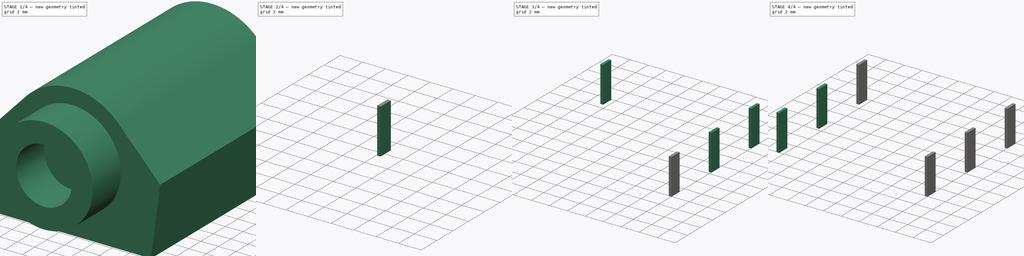
[diagram: build sequence overview — one tinted view per stage of 4, left to right]
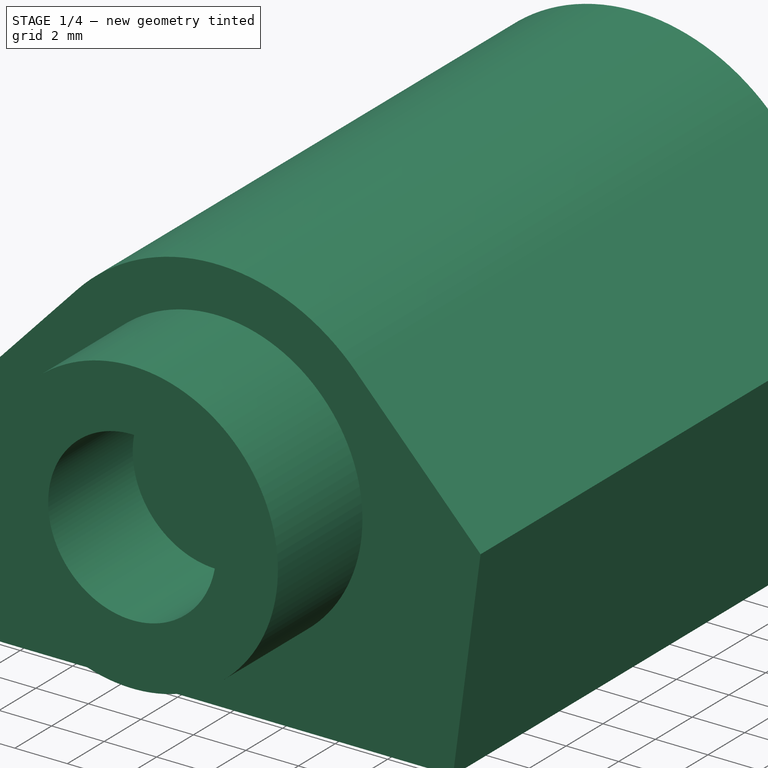
[diagram: stage 1 of 4 — iso view after this stage's code; geometry added in this stage tinted green]
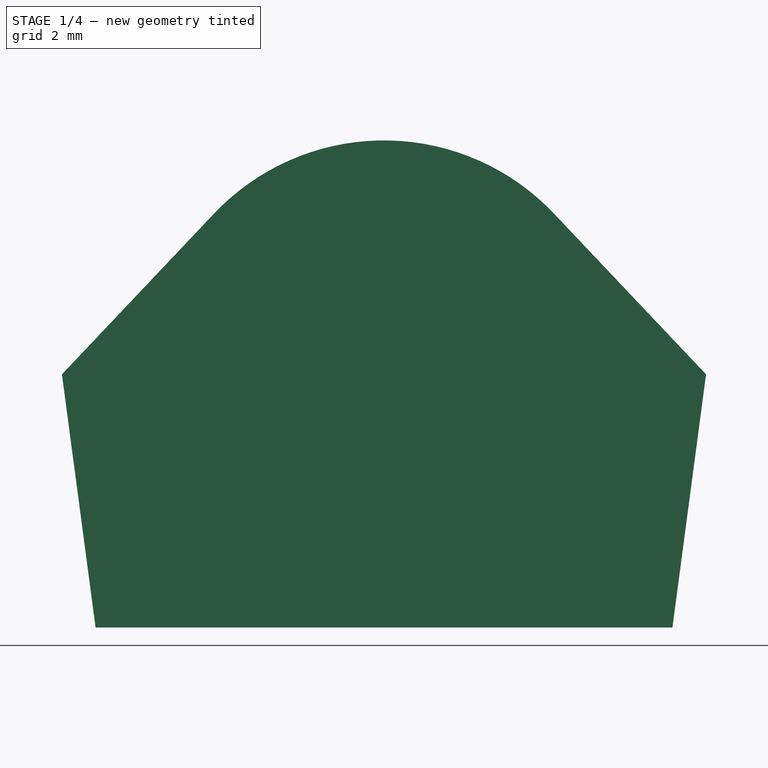
[diagram: stage 1 of 4 — front view after this stage's code; geometry added in this stage tinted green]
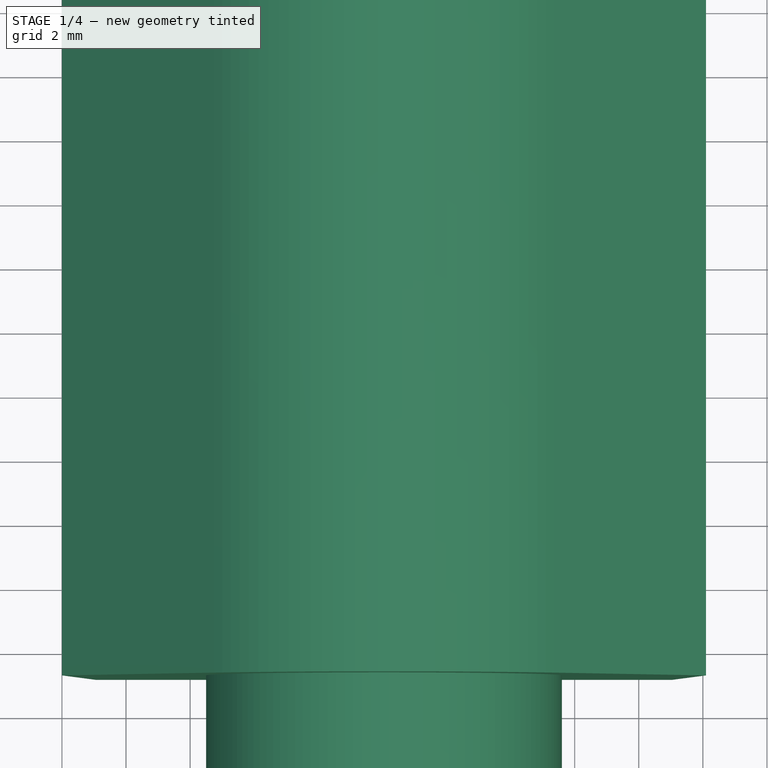
[diagram: stage 1 of 4 — top view after this stage's code; geometry added in this stage tinted green]
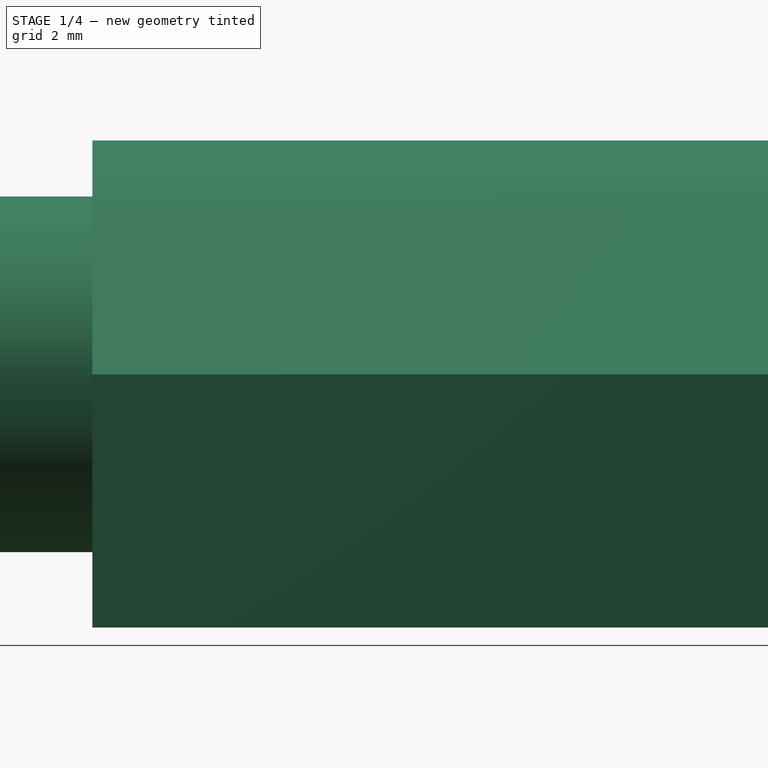
[diagram: stage 1 of 4 — right view after this stage's code; geometry added in this stage tinted green]
FCSTD DOCUMENT  (FreeCAD 0.18.4R)
Label: CL13345
License: All rights reserved
LicenseURL: http://en.wikipedia.org/wiki/All_rights_reserved
objects: Sketcher::SketchObject×10, PartDesign::Pad×9, PartDesign::Body×7, PartDesign::ShapeBinder×6, PartDesign::Pocket×1
note: 43 computed .brp shape members not serialized (recipe doc carries the construction recipe); baked Part::Feature solids carry a one-line shape summary decoded from their .brp

FEATURE [Sketcher::SketchObject] Sketch  label="Sk_JackBody"
  MapMode = 5
  Placement = pos=(0,0,0) rot=(1,0,0;1.5708rad)
  Support = -> [XZ_Plane]
  sketch-geometry (8):
    g0: LineSegment StartX=0 StartY=7.9 StartZ=0 EndX=1.05 EndY=0 EndZ=0
    g1: LineSegment StartX=1.05 StartY=0 StartZ=0 EndX=19.05 EndY=0 EndZ=0
    g2: LineSegment StartX=19.05 StartY=0 StartZ=0 EndX=20.1 EndY=7.9 EndZ=0
    g3: LineSegment StartX=20.1 StartY=7.9 StartZ=0 EndX=15.3525 EndY=12.9173 EndZ=0
    g4: ArcOfCircle CenterX=10.05 CenterY=7.9 CenterZ=0 NormalX=0 NormalY=0 NormalZ=1 AngleXU=0 Radius=7.3 StartAngle=0.757773 EndAngle=2.38382
    g5: LineSegment StartX=4.74751 StartY=12.9173 StartZ=0 EndX=0 EndY=7.9 EndZ=0
    g6: LineSegment [constr] StartX=10.05 StartY=0 StartZ=0 EndX=10.05 EndY=15.2 EndZ=0
    g7: LineSegment [constr] StartX=0 StartY=0 StartZ=0 EndX=0 EndY=7.9 EndZ=0
  constraints (22):
    c: PointOnObject(g0,g-1)
    c: Coincident(g0,g1)
    c: Horizontal(g1)
    c: Coincident(g1,g2)
    c: Coincident(g2,g3)
    c: Tangent(g3,g4) = -1.5708
    c: Coincident(g4,g5)
    c: Coincident(g5,g0)
    c: PointOnObject(g6,g1)
    c: PointOnObject(g6,g4)
    c: Equal(g0,g2)
    c: Symmetric(g0,g1,g6)
    c: Symmetric(g0,g2,g6)
    c: Symmetric(g4,g3,g6)
    c: DistanceY(g6,g6) = 15.2
    c: DistanceX(g0,g2) = 20.1
    c: Radius(g4) = 7.3
    c: DistanceY(g1,g2) = 7.9
    c: DistanceX(g1,g1) = 18
    c: Coincident(g7,g-1)
    c: Coincident(g7,g0)
    c: Vertical(g7)
FEATURE [PartDesign::Pad] Pad  label="JackBody"
  Length = 22.8
  Length2 = 100
  Placement = pos=(0,0,0) rot=(1,0,0;1.5708rad)
  Profile = -> Sketch
  Refine = true
  Type = 0
FEATURE [Sketcher::SketchObject] Sketch001  label="Sk_InsertFlange"
  ExternalGeometry = -> [Pad]
  MapMode = 5
  Placement = pos=(0,-22.8,1.01e-14) rot=(1,0,0;1.5708rad)
  Support = -> [Pad]
  sketch-geometry (3):
    g0: LineSegment [constr] StartX=10.05 StartY=0 StartZ=0 EndX=10.05 EndY=7.9 EndZ=0
    g1: Circle CenterX=10.05 CenterY=7.9 CenterZ=0 NormalX=0 NormalY=0 NormalZ=1 AngleXU=0 Radius=5.55
    g2: Circle CenterX=10.05 CenterY=7.9 CenterZ=0 NormalX=0 NormalY=0 NormalZ=1 AngleXU=0 Radius=3.2
  constraints (7):
    c: Vertical(g0)
    c: Symmetric(g-3,g-3,g0)
    c: DistanceY(g0,g0) = 7.9
    c: Coincident(g1,g0)
    c: Diameter(g1) = 11.1
    c: Coincident(g2,g1)
    c: Diameter(g2) = 6.4
FEATURE [PartDesign::Pad] Pad001  label="InsertFlange"
  BaseFeature = -> Pad
  Length = 4.6
  Length2 = 100
  Placement = pos=(0,0,0) rot=(1,0,0;1.5708rad)
  Profile = -> Sketch001
  Refine = true
  Type = 0
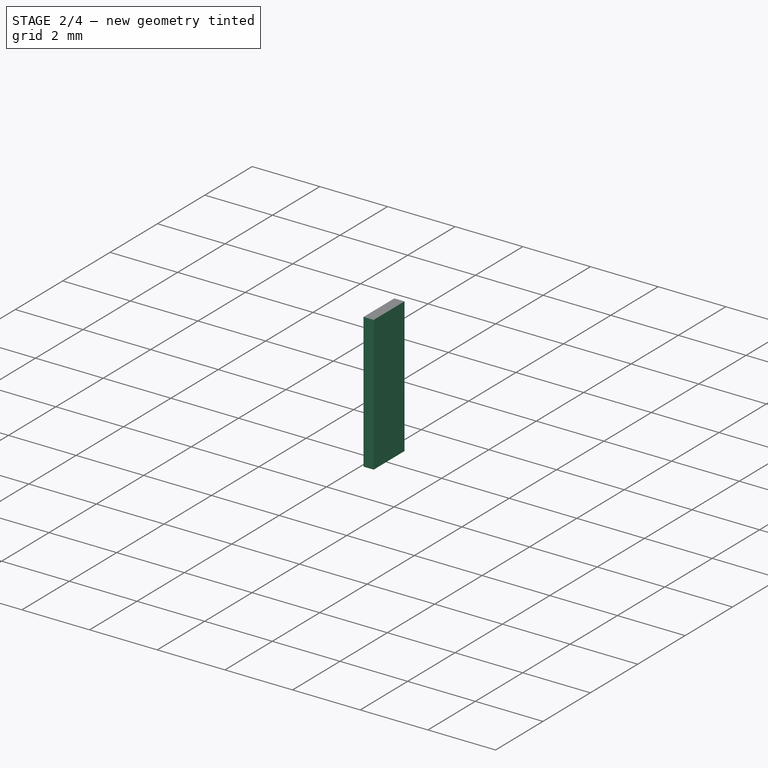
[diagram: stage 2 of 4 — iso view after this stage's code; geometry added in this stage tinted green]
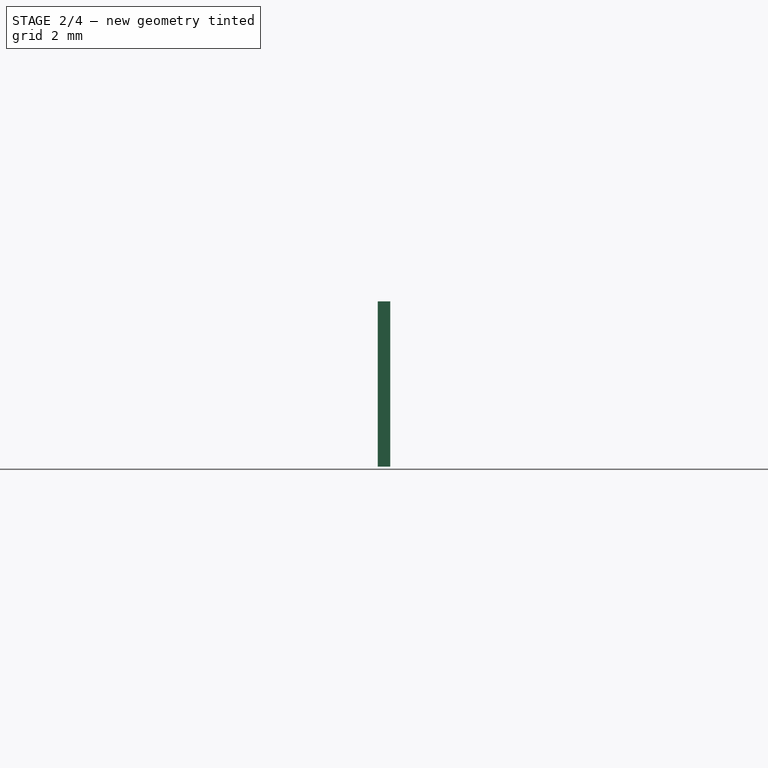
[diagram: stage 2 of 4 — front view after this stage's code; geometry added in this stage tinted green]
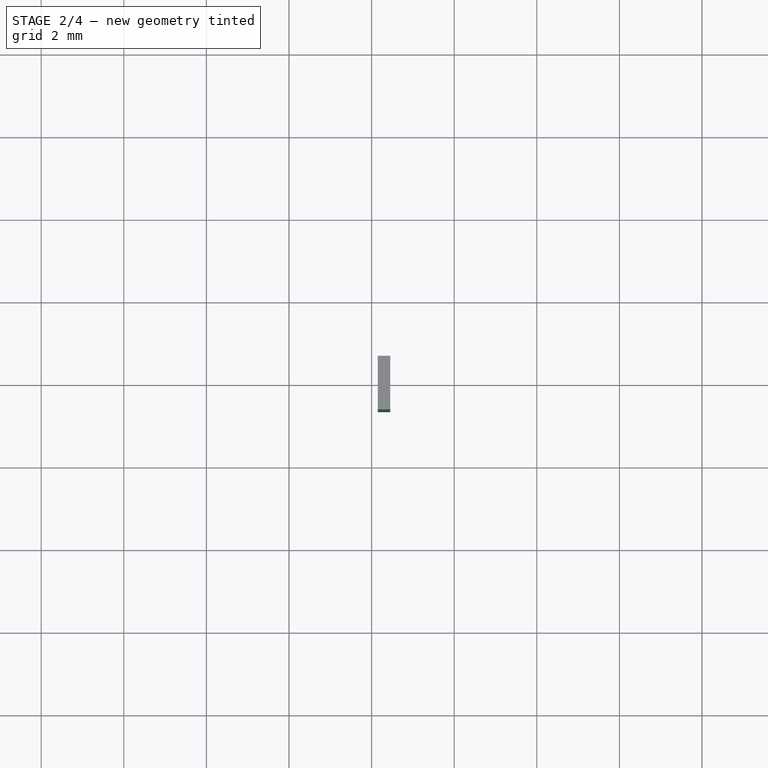
[diagram: stage 2 of 4 — top view after this stage's code; geometry added in this stage tinted green]
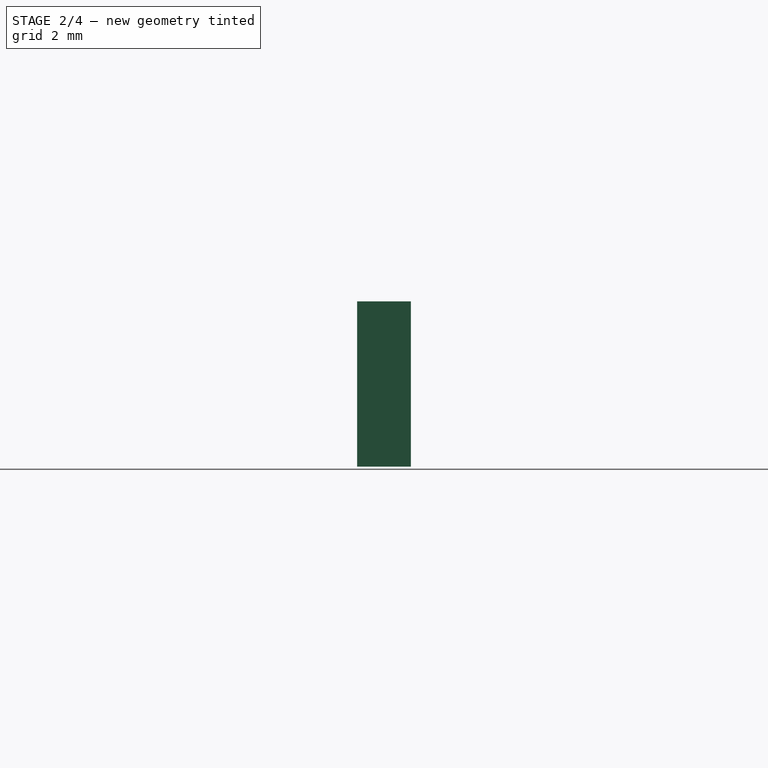
[diagram: stage 2 of 4 — right view after this stage's code; geometry added in this stage tinted green]
FEATURE [Sketcher::SketchObject] Sketch002  label="Sk_TipExtension"
  ExternalGeometry = -> [Pad001]
  MapMode = 5
  Placement = pos=(0,0,0) rot=(-1,0,0;1.5708rad)
  Support = -> [Pad001]
  sketch-geometry (2):
    g0: LineSegment [constr] StartX=10.05 StartY=0 StartZ=0 EndX=10.05 EndY=-7.9 EndZ=0
    g1: Circle CenterX=10.05 CenterY=-7.9 CenterZ=0 NormalX=0 NormalY=0 NormalZ=1 AngleXU=0 Radius=4.7
  constraints (5):
    c: Vertical(g0)
    c: Symmetric(g-3,g-3,g0)
    c: DistanceY(g0,g0) = 7.9
    c: Coincident(g1,g0)
    c: Diameter(g1) = 9.4
FEATURE [PartDesign::Pad] Pad002  label="TipExtension"
  BaseFeature = -> Pad001
  Length = 2.3
  Length2 = 100
  Placement = pos=(0,0,0) rot=(1,0,0;1.5708rad)
  Profile = -> Sketch002
  Refine = true
  Type = 0
FEATURE [Sketcher::SketchObject] Sketch003  label="Sk_PinPos"
  ExternalGeometry = -> [Pad002]
  MapMode = 5
  Placement = pos=(0,0,0) rot=(1,0,0;3.14159rad)
  Support = -> [Pad002]
  sketch-geometry (33):
    g0: LineSegment [constr] StartX=1.8 StartY=18 StartZ=0 EndX=18.3 EndY=18 EndZ=0
    g1: LineSegment [constr] StartX=18.3 StartY=18 StartZ=0 EndX=18.3 EndY=11.65 EndZ=0
    g2: LineSegment [constr] StartX=18.3 StartY=11.65 StartZ=0 EndX=1.8 EndY=11.65 EndZ=0
    g3: LineSegment [constr] StartX=1.8 StartY=11.65 StartZ=0 EndX=1.8 EndY=18 EndZ=0
    g4: LineSegment [constr] StartX=1.8 StartY=11.65 StartZ=0 EndX=18.3 EndY=11.65 EndZ=0
    g5: LineSegment [constr] StartX=18.3 StartY=11.65 StartZ=0 EndX=18.3 EndY=5.3 EndZ=0
    g6: LineSegment [constr] StartX=18.3 StartY=5.3 StartZ=0 EndX=1.8 EndY=5.3 EndZ=0
    g7: LineSegment [constr] StartX=1.8 StartY=5.3 StartZ=0 EndX=1.8 EndY=11.65 EndZ=0
    g8: LineSegment [constr] StartX=10.05 StartY=22.8 StartZ=0 EndX=10.05 EndY=18 EndZ=0
    g9: LineSegment StartX=1.65 StartY=18.65 StartZ=0 EndX=1.95 EndY=18.65 EndZ=0
    g10: LineSegment StartX=1.95 StartY=18.65 StartZ=0 EndX=1.95 EndY=17.35 EndZ=0
    g11: LineSegment StartX=1.95 StartY=17.35 StartZ=0 EndX=1.65 EndY=17.35 EndZ=0
    g12: LineSegment StartX=1.65 StartY=17.35 StartZ=0 EndX=1.65 EndY=18.65 EndZ=0
    g13: LineSegment StartX=1.65 StartY=12.3 StartZ=0 EndX=1.95 EndY=12.3 EndZ=0
    g14: LineSegment StartX=1.95 StartY=12.3 StartZ=0 EndX=1.95 EndY=11 EndZ=0
    g15: LineSegment StartX=1.95 StartY=11 StartZ=0 EndX=1.65 EndY=11 EndZ=0
    g16: LineSegment StartX=1.65 StartY=11 StartZ=0 EndX=1.65 EndY=12.3 EndZ=0
    g17: LineSegment StartX=1.65 StartY=5.95 StartZ=0 EndX=1.95 EndY=5.95 EndZ=0
    g18: LineSegment StartX=1.95 StartY=5.95 StartZ=0 EndX=1.95 EndY=4.65 EndZ=0
    g19: LineSegment StartX=1.95 StartY=4.65 StartZ=0 EndX=1.65 EndY=4.65 EndZ=0
    g20: LineSegment StartX=1.65 StartY=4.65 StartZ=0 EndX=1.65 EndY=5.95 EndZ=0
    g21: LineSegment StartX=18.15 StartY=5.95 StartZ=0 EndX=18.45 EndY=5.95 EndZ=0
    g22: LineSegment StartX=18.45 StartY=5.95 StartZ=0 EndX=18.45 EndY=4.65 EndZ=0
    g23: LineSegment StartX=18.45 StartY=4.65 StartZ=0 EndX=18.15 EndY=4.65 EndZ=0
    g24: LineSegment StartX=18.15 StartY=4.65 StartZ=0 EndX=18.15 EndY=5.95 EndZ=0
    g25: LineSegment StartX=18.15 StartY=12.3 StartZ=0 EndX=18.45 EndY=12.3 EndZ=0
    g26: LineSegment StartX=18.45 StartY=12.3 StartZ=0 EndX=18.45 EndY=11 EndZ=0
    g27: LineSegment StartX=18.45 StartY=11 StartZ=0 EndX=18.15 EndY=11 EndZ=0
    g28: LineSegment StartX=18.15 StartY=11 StartZ=0 EndX=18.15 EndY=12.3 EndZ=0
    g29: LineSegment StartX=18.15 StartY=18.65 StartZ=0 EndX=18.45 EndY=18.65 EndZ=0
    g30: LineSegment StartX=18.45 StartY=18.65 StartZ=0 EndX=18.45 EndY=17.35 EndZ=0
    g31: LineSegment StartX=18.45 StartY=17.35 StartZ=0 EndX=18.15 EndY=17.35 EndZ=0
    g32: LineSegment StartX=18.15 StartY=17.35 StartZ=0 EndX=18.15 EndY=18.65 EndZ=0
  constraints (90):
    c: Coincident(g0,g1)
    c: Coincident(g1,g2)
    c: Coincident(g2,g3)
    c: Coincident(g3,g0)
    c: Horizontal(g2)
    c: Vertical(g1)
    c: Vertical(g3)
    c: Coincident(g4,g5)
    c: Coincident(g5,g6)
    c: Coincident(g6,g7)
    c: Coincident(g7,g4)
    c: Horizontal(g6)
    c: Vertical(g5)
    c: Vertical(g7)
    c: Coincident(g4,g2)
    c: PointOnObject(g8,g-3)
    c: PointOnObject(g8,g0)
    c: Coincident(g4,g1)
    c: Symmetric(g-3,g-3,g8)
    c: Symmetric(g0,g0,g8)
    c: Equal(g1,g5)
    c: DistanceY(g8,g8) = 4.8
    c: DistanceY(g1,g1) = 6.35
    c: DistanceX(g6,g6) = 16.5
    c: Coincident(g9,g10)
    c: Coincident(g10,g11)
    c: Coincident(g11,g12)
    c: Coincident(g12,g9)
    c: Horizontal(g9)
    c: Horizontal(g11)
    c: Vertical(g10)
    c: Vertical(g12)
    c: Coincident(g13,g14)
    c: Coincident(g14,g15)
    c: Coincident(g15,g16)
    c: Coincident(g16,g13)
    c: Horizontal(g13)
    c: Horizontal(g15)
    c: Vertical(g14)
    c: Vertical(g16)
    c: Coincident(g17,g18)
    c: Coincident(g18,g19)
    c: Coincident(g19,g20)
    c: Coincident(g20,g17)
    c: Horizontal(g17)
    c: Horizontal(g19)
    c: Vertical(g18)
    c: Vertical(g20)
    c: Coincident(g21,g22)
    c: Coincident(g22,g23)
    c: Coincident(g23,g24)
    c: Coincident(g24,g21)
    c: Horizontal(g21)
    c: Horizontal(g23)
    c: Vertical(g22)
    c: Vertical(g24)
    c: Coincident(g25,g26)
    c: Coincident(g26,g27)
    c: Coincident(g27,g28)
    c: Coincident(g28,g25)
    c: Horizontal(g25)
    c: Horizontal(g27)
    c: Vertical(g26)
    c: Vertical(g28)
    c: Coincident(g29,g30)
    c: Coincident(g30,g31)
    c: Coincident(g31,g32)
    c: Coincident(g32,g29)
    c: Horizontal(g29)
    c: Horizontal(g31)
    c: Vertical(g30)
    c: Vertical(g32)
    c: Symmetric(g9,g10,g0)
    c: Symmetric(g13,g14,g2)
    c: Symmetric(g17,g18,g6)
    c: Symmetric(g21,g22,g5)
    c: Symmetric(g25,g26,g1)
    c: Symmetric(g29,g30,g0)
    c: Equal(g9,g13)
    c: Equal(g13,g17)
    c: Equal(g17,g21)
    c: Equal(g21,g25)
    c: Equal(g25,g29)
    c: Equal(g10,g14)
    c: Equal(g14,g18)
    c: Equal(g18,g22)
    c: Equal(g22,g26)
    c: Equal(g26,g30)
    c: DistanceY(g10,g10) = 1.3
    c: DistanceX(g9,g9) = 0.3
FEATURE [PartDesign::Pocket] Pocket  label="PinPos"
  BaseFeature = -> Pad002
  Length = 0.1
  Length2 = 100
  Placement = pos=(0,0,0) rot=(1,0,0;1.5708rad)
  Profile = -> Sketch003
  Refine = true
  Type = 0
FEATURE [PartDesign::Body] Body005  label="PinR"
  Group = -> [ReferencePocket004,Sketch008,Pad007]
  Origin = -> Origin005
  Tip = -> Pad007
FEATURE [PartDesign::ShapeBinder] ReferencePocket005
  Placement = pos=(0,0,0) rot=(1,0,0;1.5708rad)
  Support = -> [Pocket]
  TraceSupport = false
FEATURE [Sketcher::SketchObject] Sketch009
  ExternalGeometry = -> [ReferencePocket005]
  MapMode = 5
  Placement = pos=(0,0,0) rot=(1,0,0;3.14159rad)
  Support = -> [ReferencePocket005]
  sketch-geometry (4):
    g0: LineSegment StartX=18.15 StartY=17.35 StartZ=0 EndX=18.45 EndY=17.35 EndZ=0
    g1: LineSegment StartX=18.45 StartY=17.35 StartZ=0 EndX=18.45 EndY=18.65 EndZ=0
    g2: LineSegment StartX=18.45 StartY=18.65 StartZ=0 EndX=18.15 EndY=18.65 EndZ=0
    g3: LineSegment StartX=18.15 StartY=18.65 StartZ=0 EndX=18.15 EndY=17.35 EndZ=0
  constraints (10):
    c: Coincident(g0,g1)
    c: Coincident(g1,g2)
    c: Coincident(g2,g3)
    c: Coincident(g3,g0)
    c: Horizontal(g0)
    c: Horizontal(g2)
    c: Vertical(g1)
    c: Vertical(g3)
    c: Coincident(g0,g-3)
    c: Coincident(g1,g-4)
FEATURE [PartDesign::Pad] Pad008
  Length = 4
  Length2 = 100
  Placement = pos=(0,0,0) rot=(1,0,0;1.5708rad)
  Profile = -> Sketch009
  Refine = true
  Type = 0
FEATURE [PartDesign::Body] Body006  label="PinS"
  Group = -> [ReferencePocket005,Sketch009,Pad008]
  Origin = -> Origin006
  Tip = -> Pad008
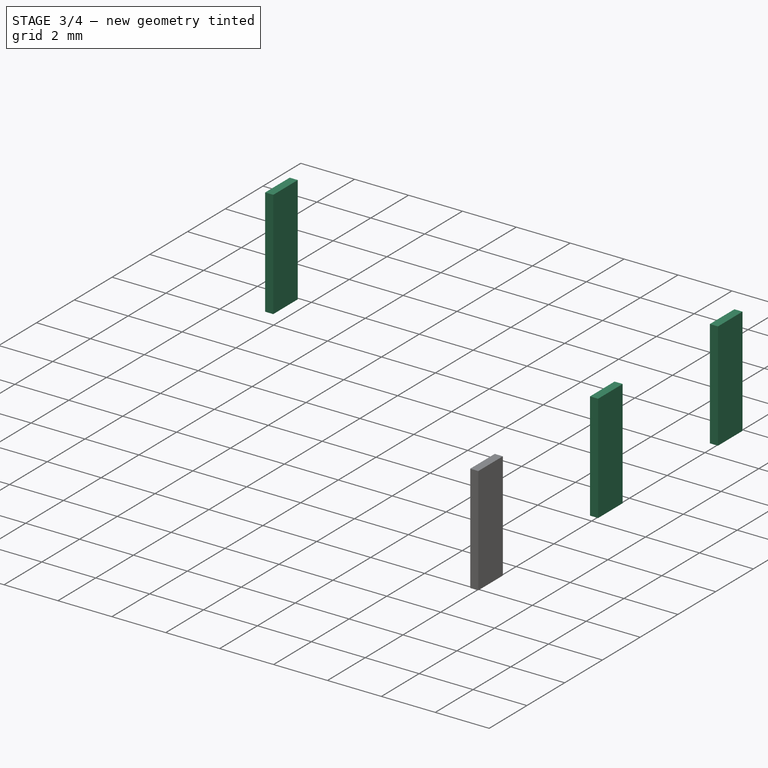
[diagram: stage 3 of 4 — iso view after this stage's code; geometry added in this stage tinted green]
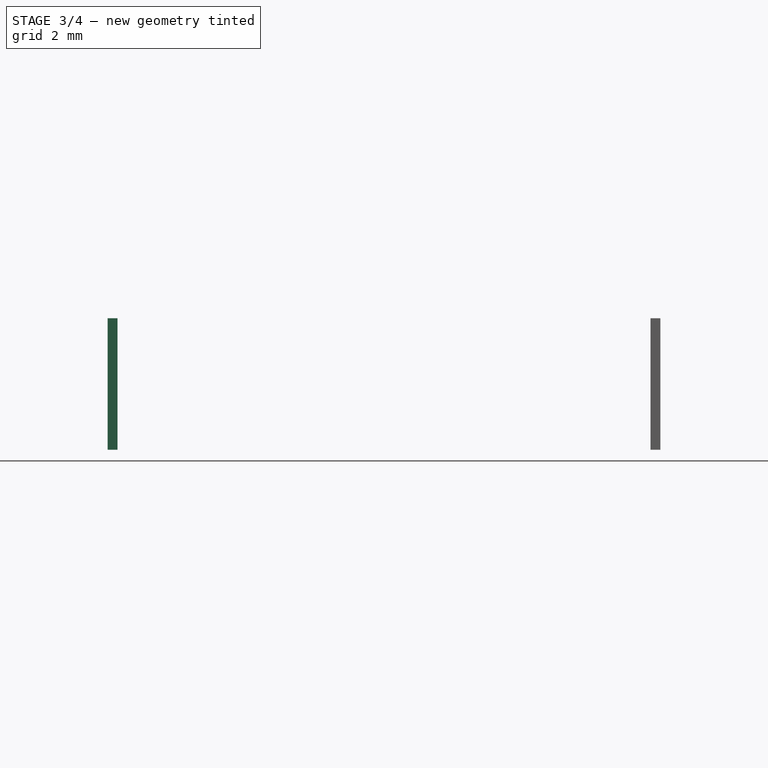
[diagram: stage 3 of 4 — front view after this stage's code; geometry added in this stage tinted green]
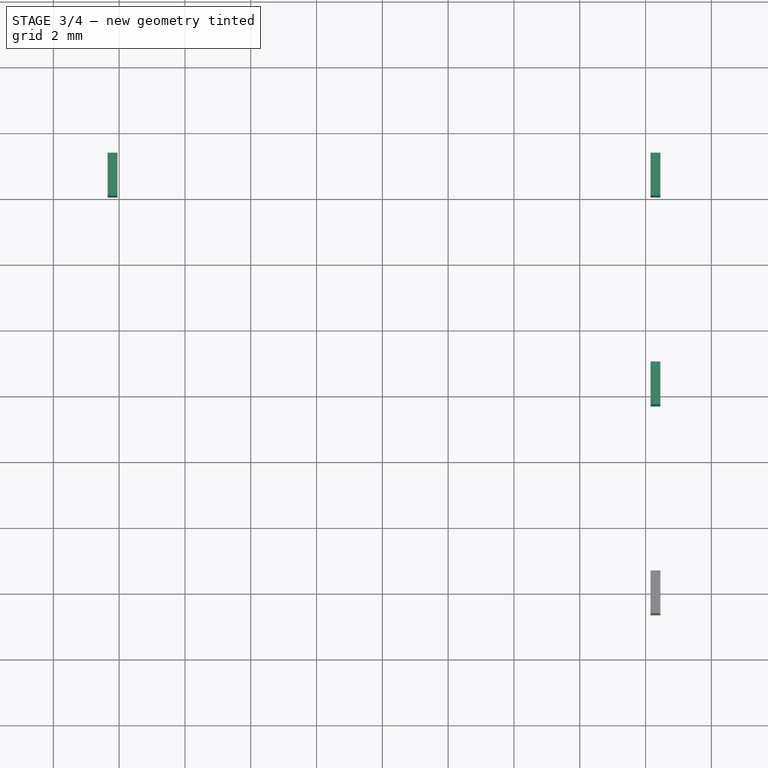
[diagram: stage 3 of 4 — top view after this stage's code; geometry added in this stage tinted green]
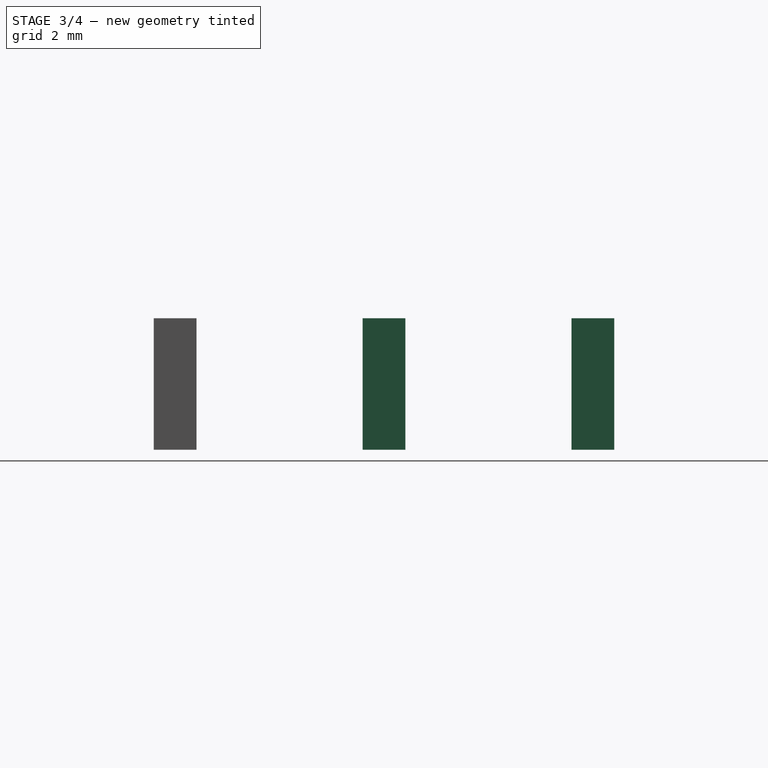
[diagram: stage 3 of 4 — right view after this stage's code; geometry added in this stage tinted green]
FEATURE [PartDesign::Body] Body002  label="PinRN"
  Group = -> [ReferencePocket,Sketch005,Pad004]
  Origin = -> Origin002
  Tip = -> Pad004
FEATURE [PartDesign::ShapeBinder] ReferencePocket002
  Placement = pos=(0,0,0) rot=(1,0,0;1.5708rad)
  Support = -> [Pocket]
  TraceSupport = false
FEATURE [Sketcher::SketchObject] Sketch006
  ExternalGeometry = -> [ReferencePocket002]
  MapMode = 5
  Placement = pos=(0,0,0) rot=(1,0,0;3.14159rad)
  Support = -> [ReferencePocket002]
  sketch-geometry (4):
    g0: LineSegment StartX=1.65 StartY=4.65 StartZ=0 EndX=1.95 EndY=4.65 EndZ=0
    g1: LineSegment StartX=1.95 StartY=4.65 StartZ=0 EndX=1.95 EndY=5.95 EndZ=0
    g2: LineSegment StartX=1.95 StartY=5.95 StartZ=0 EndX=1.65 EndY=5.95 EndZ=0
    g3: LineSegment StartX=1.65 StartY=5.95 StartZ=0 EndX=1.65 EndY=4.65 EndZ=0
  constraints (10):
    c: Coincident(g0,g1)
    c: Coincident(g1,g2)
    c: Coincident(g2,g3)
    c: Coincident(g3,g0)
    c: Horizontal(g0)
    c: Horizontal(g2)
    c: Vertical(g1)
    c: Vertical(g3)
    c: Coincident(g0,g-3)
    c: Coincident(g1,g-4)
FEATURE [PartDesign::Pad] Pad005
  Length = 4
  Length2 = 100
  Placement = pos=(0,0,0) rot=(1,0,0;1.5708rad)
  Profile = -> Sketch006
  Refine = true
  Type = 0
FEATURE [PartDesign::Body] Body003  label="PinTN"
  Group = -> [ReferencePocket002,Sketch006,Pad005]
  Origin = -> Origin003
  Tip = -> Pad005
FEATURE [PartDesign::ShapeBinder] ReferencePocket003
  Placement = pos=(0,0,0) rot=(1,0,0;1.5708rad)
  Support = -> [Pocket]
  TraceSupport = false
FEATURE [Sketcher::SketchObject] Sketch007
  ExternalGeometry = -> [ReferencePocket003]
  MapMode = 5
  Placement = pos=(0,0,0) rot=(1,0,0;3.14159rad)
  Support = -> [ReferencePocket003]
  sketch-geometry (4):
    g0: LineSegment StartX=18.15 StartY=4.65 StartZ=0 EndX=18.45 EndY=4.65 EndZ=0
    g1: LineSegment StartX=18.45 StartY=4.65 StartZ=0 EndX=18.45 EndY=5.95 EndZ=0
    g2: LineSegment StartX=18.45 StartY=5.95 StartZ=0 EndX=18.15 EndY=5.95 EndZ=0
    g3: LineSegment StartX=18.15 StartY=5.95 StartZ=0 EndX=18.15 EndY=4.65 EndZ=0
  constraints (10):
    c: Coincident(g0,g1)
    c: Coincident(g1,g2)
    c: Coincident(g2,g3)
    c: Coincident(g3,g0)
    c: Horizontal(g0)
    c: Horizontal(g2)
    c: Vertical(g1)
    c: Vertical(g3)
    c: Coincident(g0,g-3)
    c: Coincident(g1,g-4)
FEATURE [PartDesign::Pad] Pad006
  Length = 4
  Length2 = 100
  Placement = pos=(0,0,0) rot=(1,0,0;1.5708rad)
  Profile = -> Sketch007
  Refine = true
  Type = 0
FEATURE [PartDesign::Body] Body004  label="PinT"
  Group = -> [ReferencePocket003,Sketch007,Pad006]
  Origin = -> Origin004
  Tip = -> Pad006
FEATURE [PartDesign::ShapeBinder] ReferencePocket004
  Placement = pos=(0,0,0) rot=(1,0,0;1.5708rad)
  Support = -> [Pocket]
  TraceSupport = false
FEATURE [Sketcher::SketchObject] Sketch008
  ExternalGeometry = -> [ReferencePocket004]
  MapMode = 5
  Placement = pos=(0,0,0) rot=(1,0,0;3.14159rad)
  Support = -> [ReferencePocket004]
  sketch-geometry (4):
    g0: LineSegment StartX=18.15 StartY=11 StartZ=0 EndX=18.45 EndY=11 EndZ=0
    g1: LineSegment StartX=18.45 StartY=11 StartZ=0 EndX=18.45 EndY=12.3 EndZ=0
    g2: LineSegment StartX=18.45 StartY=12.3 StartZ=0 EndX=18.15 EndY=12.3 EndZ=0
    g3: LineSegment StartX=18.15 StartY=12.3 StartZ=0 EndX=18.15 EndY=11 EndZ=0
  constraints (10):
    c: Coincident(g0,g1)
    c: Coincident(g1,g2)
    c: Coincident(g2,g3)
    c: Coincident(g3,g0)
    c: Horizontal(g0)
    c: Horizontal(g2)
    c: Vertical(g1)
    c: Vertical(g3)
    c: Coincident(g0,g-3)
    c: Coincident(g1,g-4)
FEATURE [PartDesign::Pad] Pad007
  Length = 4
  Length2 = 100
  Placement = pos=(0,0,0) rot=(1,0,0;1.5708rad)
  Profile = -> Sketch008
  Refine = true
  Type = 0
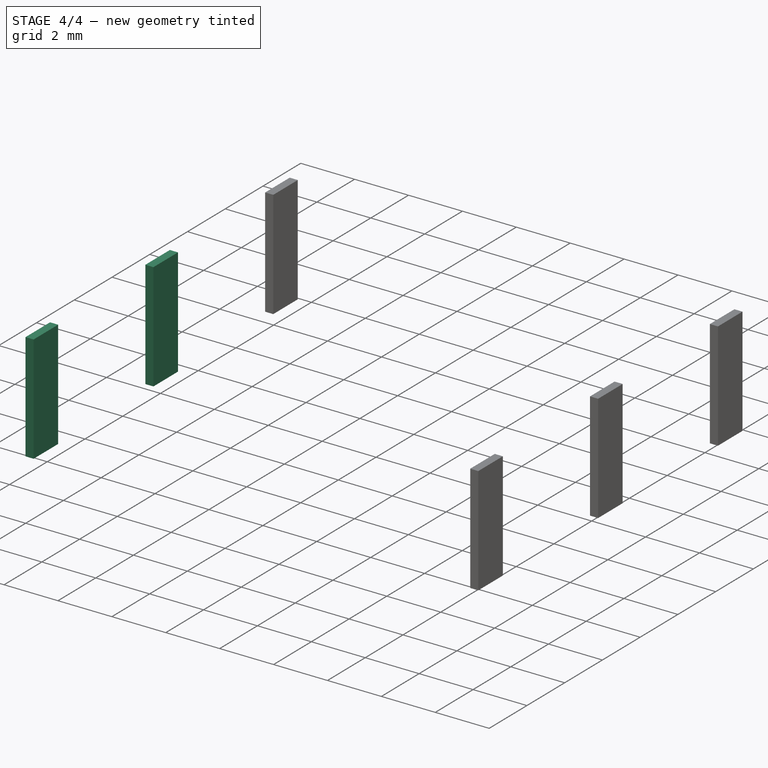
[diagram: stage 4 of 4 — iso view after this stage's code; geometry added in this stage tinted green]
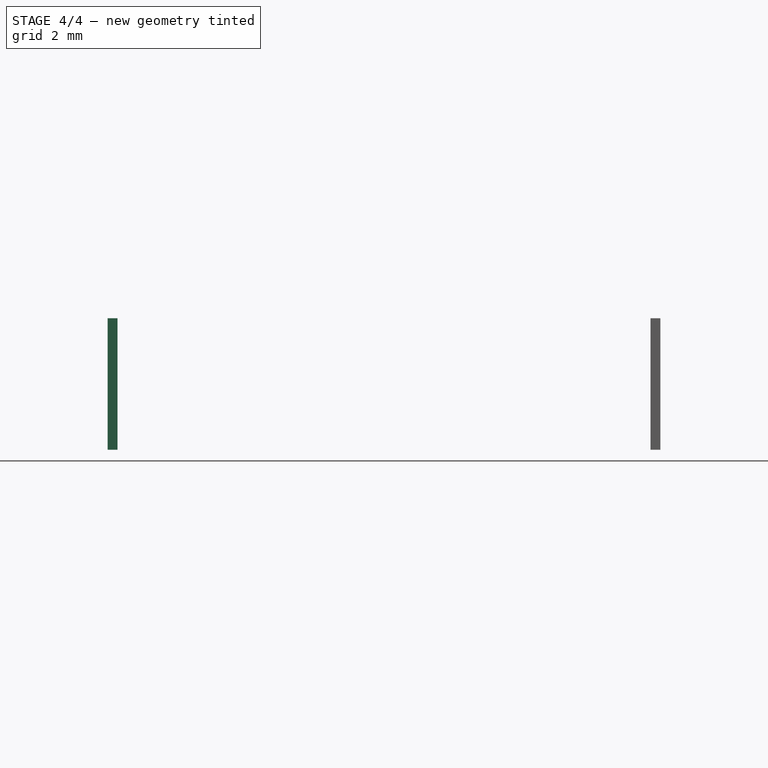
[diagram: stage 4 of 4 — front view after this stage's code; geometry added in this stage tinted green]
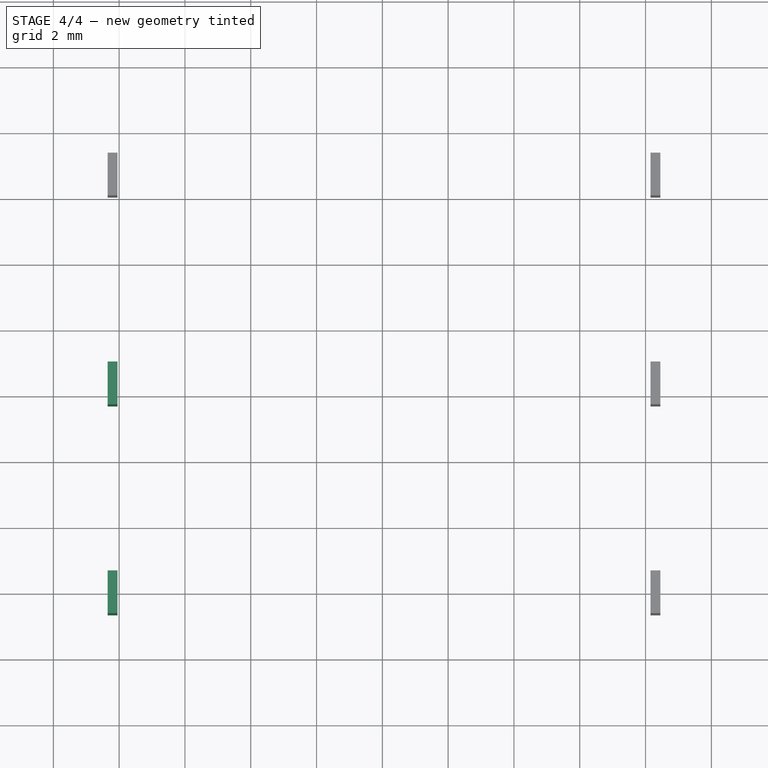
[diagram: stage 4 of 4 — top view after this stage's code; geometry added in this stage tinted green]
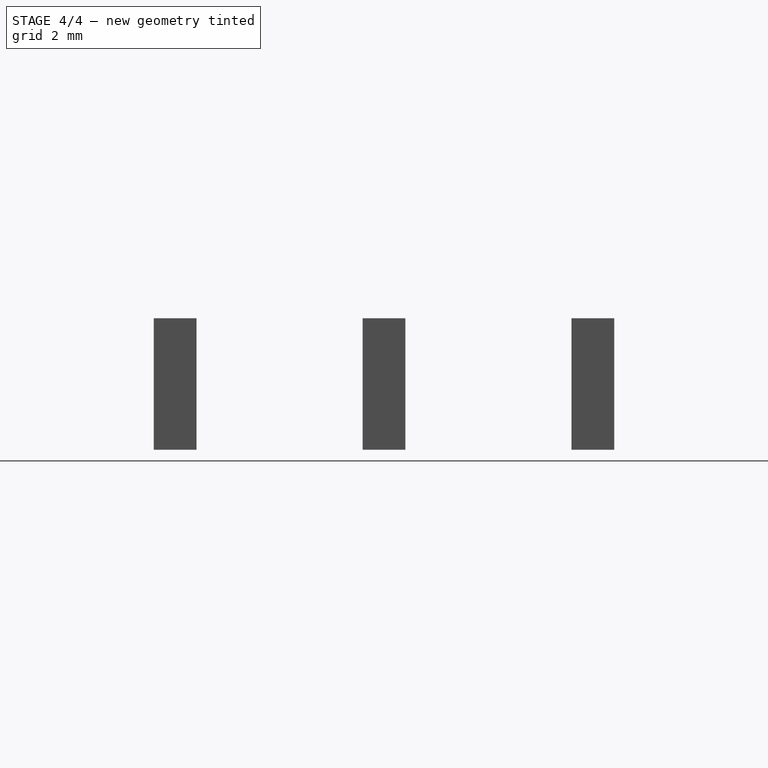
[diagram: stage 4 of 4 — right view after this stage's code; geometry added in this stage tinted green]
FEATURE [PartDesign::Body] Body  label="Jack"
  Group = -> [Sketch,Pad,Sketch001,Pad001,Sketch002,Pad002,Sketch003,Pocket]
  Origin = -> Origin
  Tip = -> Pocket
FEATURE [PartDesign::ShapeBinder] ReferencePocket001
  Placement = pos=(0,0,0) rot=(1,0,0;1.5708rad)
  Support = -> [Pocket]
  TraceSupport = false
FEATURE [Sketcher::SketchObject] Sketch004
  ExternalGeometry = -> [ReferencePocket001]
  MapMode = 5
  Placement = pos=(0,0,0) rot=(1,0,0;3.14159rad)
  Support = -> [ReferencePocket001]
  sketch-geometry (4):
    g0: LineSegment StartX=1.65 StartY=18.65 StartZ=0 EndX=1.95 EndY=18.65 EndZ=0
    g1: LineSegment StartX=1.95 StartY=18.65 StartZ=0 EndX=1.95 EndY=17.35 EndZ=0
    g2: LineSegment StartX=1.95 StartY=17.35 StartZ=0 EndX=1.65 EndY=17.35 EndZ=0
    g3: LineSegment StartX=1.65 StartY=17.35 StartZ=0 EndX=1.65 EndY=18.65 EndZ=0
  constraints (10):
    c: Coincident(g0,g1)
    c: Coincident(g1,g2)
    c: Coincident(g2,g3)
    c: Coincident(g3,g0)
    c: Horizontal(g0)
    c: Horizontal(g2)
    c: Vertical(g1)
    c: Vertical(g3)
    c: Coincident(g0,g-4)
    c: Coincident(g1,g-3)
FEATURE [PartDesign::Pad] Pad003
  Length = 4
  Length2 = 100
  Placement = pos=(0,0,0) rot=(1,0,0;1.5708rad)
  Profile = -> Sketch004
  Refine = true
  Type = 0
FEATURE [PartDesign::Body] Body001  label="PinSN"
  Group = -> [ReferencePocket001,Sketch004,Pad003]
  Origin = -> Origin001
  Tip = -> Pad003
FEATURE [PartDesign::ShapeBinder] ReferencePocket
  Placement = pos=(0,0,0) rot=(1,0,0;1.5708rad)
  Support = -> [Pocket]
  TraceSupport = false
FEATURE [Sketcher::SketchObject] Sketch005
  ExternalGeometry = -> [ReferencePocket]
  MapMode = 5
  Placement = pos=(0,0,0) rot=(1,0,0;3.14159rad)
  Support = -> [ReferencePocket]
  sketch-geometry (4):
    g0: LineSegment StartX=1.65 StartY=11 StartZ=0 EndX=1.95 EndY=11 EndZ=0
    g1: LineSegment StartX=1.95 StartY=11 StartZ=0 EndX=1.95 EndY=12.3 EndZ=0
    g2: LineSegment StartX=1.95 StartY=12.3 StartZ=0 EndX=1.65 EndY=12.3 EndZ=0
    g3: LineSegment StartX=1.65 StartY=12.3 StartZ=0 EndX=1.65 EndY=11 EndZ=0
  constraints (10):
    c: Coincident(g0,g1)
    c: Coincident(g1,g2)
    c: Coincident(g2,g3)
    c: Coincident(g3,g0)
    c: Horizontal(g0)
    c: Horizontal(g2)
    c: Vertical(g1)
    c: Vertical(g3)
    c: Coincident(g0,g-3)
    c: Coincident(g1,g-4)
FEATURE [PartDesign::Pad] Pad004
  Length = 4
  Length2 = 100
  Placement = pos=(0,0,0) rot=(1,0,0;1.5708rad)
  Profile = -> Sketch005
  Refine = true
  Type = 0
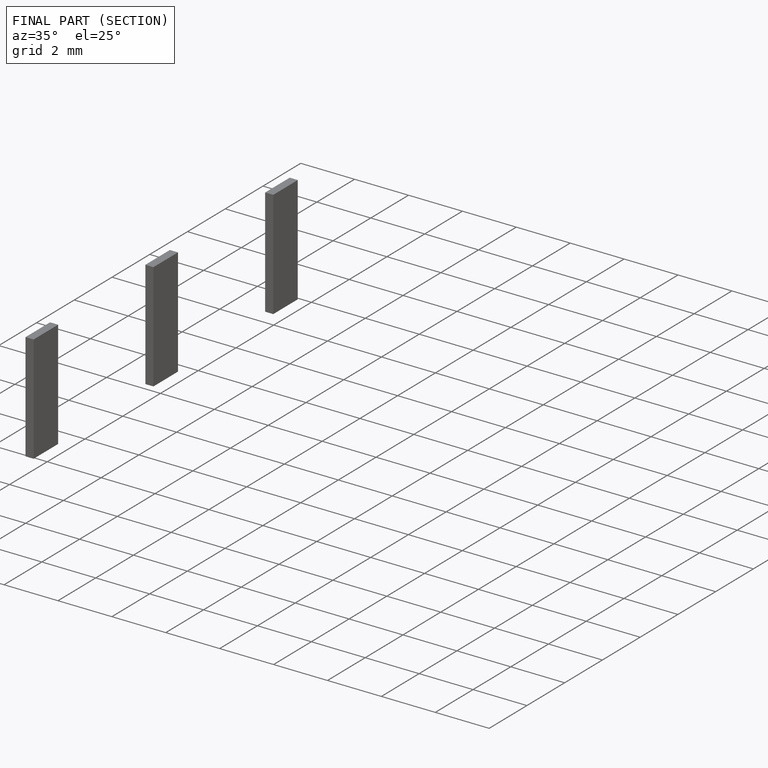
[diagram: finished part — half-section view (interior)]
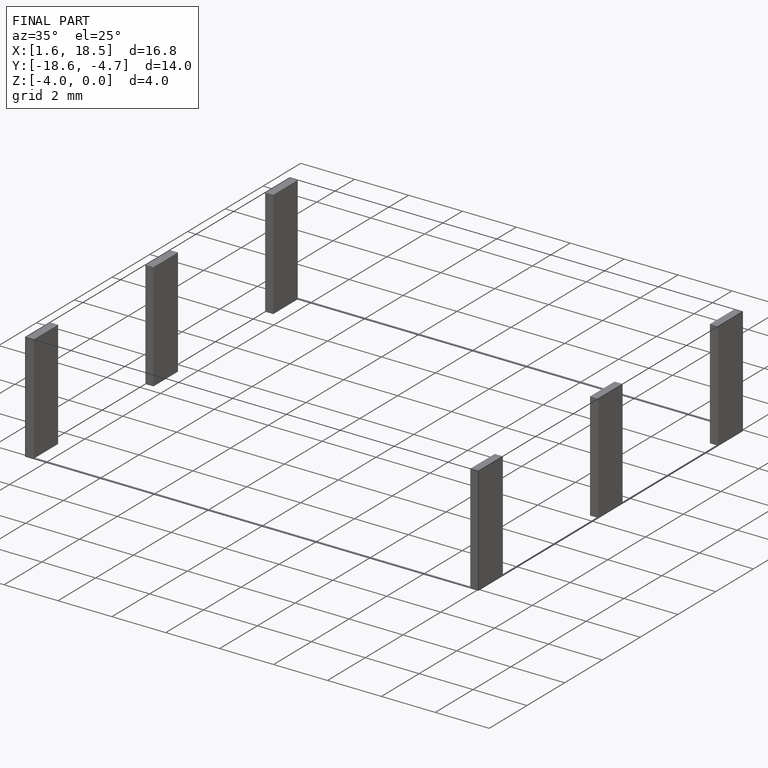
[diagram: finished part — iso view with bounding-box wireframe]
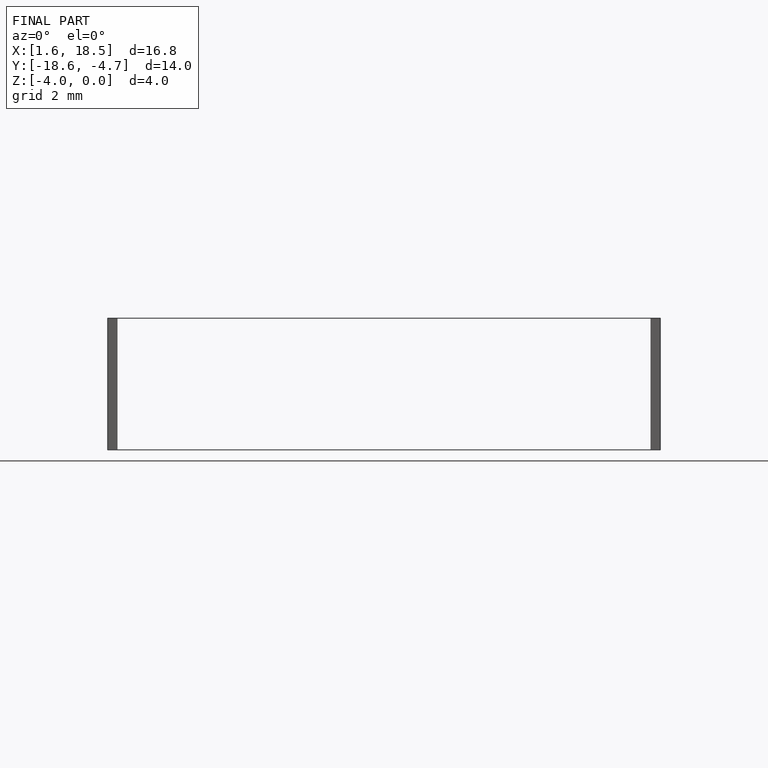
[diagram: finished part — front view with bounding-box wireframe]
